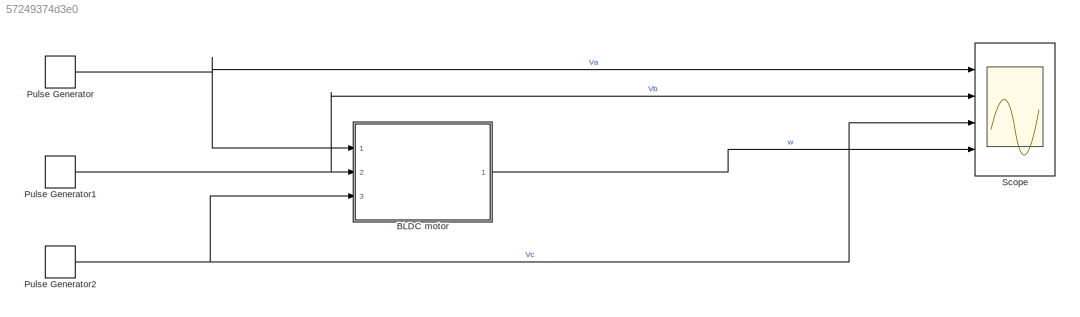
MODEL slx_57249374d3e0
KIND model
CONFIG AbsTol = auto
CONFIG EnableMultiTasking = off
CONFIG FixedStep = auto
CONFIG MaxStep = auto
CONFIG MinStep = auto
CONFIG RelTol = 1e-3
CONFIG SampleTimeConstraint = Unconstrained
CONFIG SolverName = VariableStepAuto
CONFIG StartTime = 0.0
CONFIG StopTime = 10.0
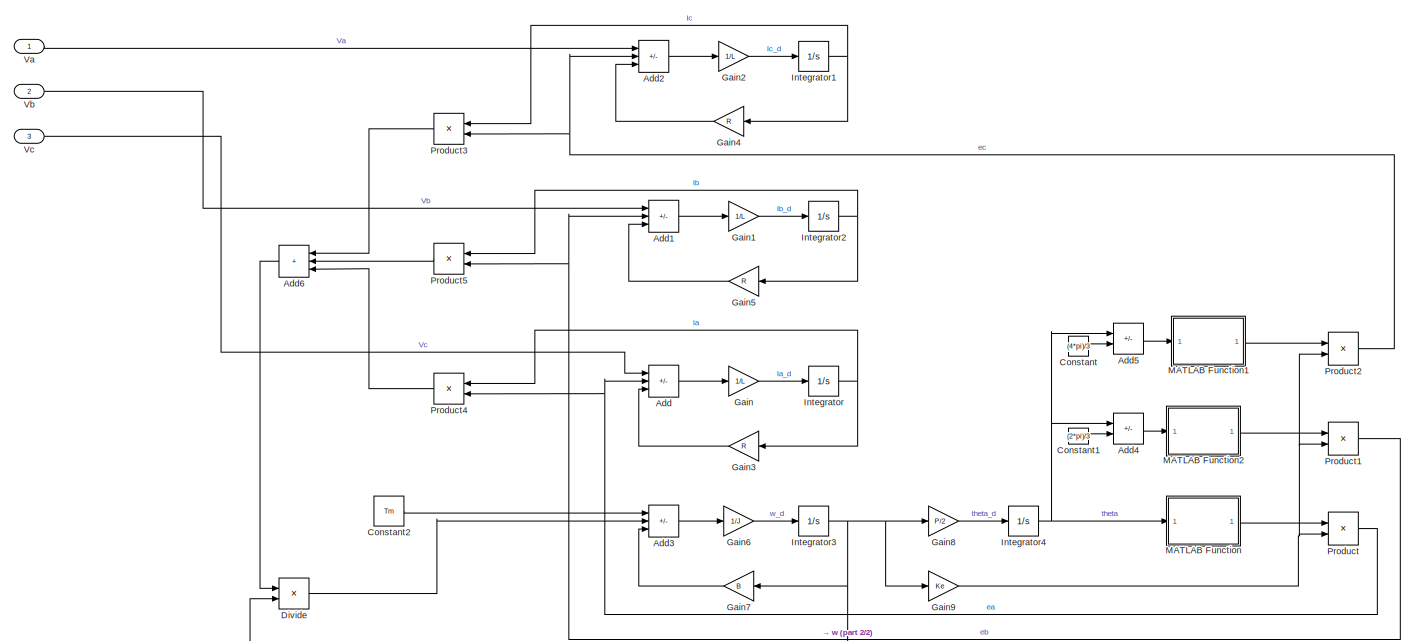
[diagram: BLDC motor - part 1/2, most of the canvas]
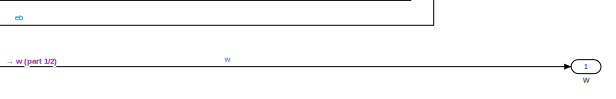
[diagram: BLDC motor - part 2/2, bottom right region]
BLOCK [SubSystem] BLDC motor
  Ports = [3, 1]
  RequestExecContextInheritance = off
BLOCK [Sum] BLDC motor/Add
  IconShape = rectangular
  Inputs = +--
  Ports = [3, 1]
BLOCK [Sum] BLDC motor/Add1
  IconShape = rectangular
  Inputs = +--
  Ports = [3, 1]
BLOCK [Sum] BLDC motor/Add2
  IconShape = rectangular
  Inputs = +--
  Ports = [3, 1]
BLOCK [Sum] BLDC motor/Add3
  IconShape = rectangular
  Inputs = -+-
  Ports = [3, 1]
BLOCK [Sum] BLDC motor/Add4
  IconShape = rectangular
  Inputs = +-
  Ports = [2, 1]
BLOCK [Sum] BLDC motor/Add5
  IconShape = rectangular
  Inputs = +-
  Ports = [2, 1]
BLOCK [Sum] BLDC motor/Add6
  IconShape = rectangular
  Inputs = +++
  NameLocation = top
  Ports = [3, 1]
BLOCK [Constant] BLDC motor/Constant
  Value = (4*pi)/3
BLOCK [Constant] BLDC motor/Constant1
  Value = (2*pi)/3
BLOCK [Constant] BLDC motor/Constant2
  Value = Tm
BLOCK [Product] BLDC motor/Divide
  Inputs = */
  Ports = [2, 1]
BLOCK [Gain] BLDC motor/Gain
  Gain = 1/L
BLOCK [Gain] BLDC motor/Gain1
  Gain = 1/L
BLOCK [Gain] BLDC motor/Gain2
  Gain = 1/L
BLOCK [Gain] BLDC motor/Gain3
  Gain = R
  NameLocation = top
BLOCK [Gain] BLDC motor/Gain4
  Gain = R
  NameLocation = top
BLOCK [Gain] BLDC motor/Gain5
  Gain = R
  NameLocation = top
BLOCK [Gain] BLDC motor/Gain6
  Gain = 1/J
BLOCK [Gain] BLDC motor/Gain7
  Gain = B
  NameLocation = top
BLOCK [Gain] BLDC motor/Gain8
  Gain = P/2
BLOCK [Gain] BLDC motor/Gain9
  Gain = Ke
BLOCK [Integrator] BLDC motor/Integrator
  Ports = [1, 1]
BLOCK [Integrator] BLDC motor/Integrator1
  Ports = [1, 1]
BLOCK [Integrator] BLDC motor/Integrator2
  Ports = [1, 1]
BLOCK [Integrator] BLDC motor/Integrator3
  InitialCondition = 1
  Ports = [1, 1]
BLOCK [Integrator] BLDC motor/Integrator4
  Ports = [1, 1]
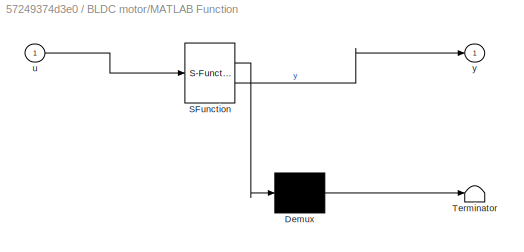
BLOCK [SubSystem] BLDC motor/MATLAB Function
  ErrorFcn = Stateflow.Translate.translate
  PermitHierarchicalResolution = ExplicitOnly
  Ports = [1, 1]
  RequestExecContextInheritance = off
  SFBlockType = MATLAB Function
  TreatAsAtomicUnit = on
BLOCK [Demux] BLDC motor/MATLAB Function/ Demux 
  Outputs = 1
  Ports = [1, 1]
BLOCK [S-Function] BLDC motor/MATLAB Function/ SFunction 
  EnableBusSupport = on
  FunctionName = sf_sfun
  PortCounts = [1 2]
  Ports = [1, 2]
  SFcnIsStateOwnerBlock = off
  SFunctionDeploymentMode = off
  Tag = Stateflow S-Function 2
BLOCK [Terminator] BLDC motor/MATLAB Function/ Terminator 
BLOCK [Inport] BLDC motor/MATLAB Function/u
BLOCK [Outport] BLDC motor/MATLAB Function/y
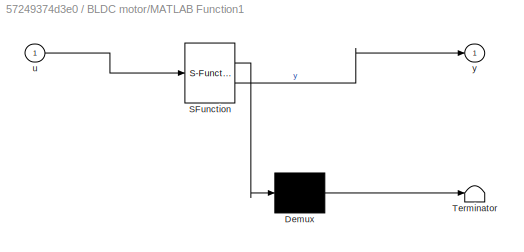
BLOCK [SubSystem] BLDC motor/MATLAB Function1
  ErrorFcn = Stateflow.Translate.translate
  PermitHierarchicalResolution = ExplicitOnly
  Ports = [1, 1]
  RequestExecContextInheritance = off
  SFBlockType = MATLAB Function
  TreatAsAtomicUnit = on
BLOCK [Demux] BLDC motor/MATLAB Function1/ Demux 
  Outputs = 1
  Ports = [1, 1]
BLOCK [S-Function] BLDC motor/MATLAB Function1/ SFunction 
  EnableBusSupport = on
  FunctionName = sf_sfun
  PortCounts = [1 2]
  Ports = [1, 2]
  SFcnIsStateOwnerBlock = off
  SFunctionDeploymentMode = off
  Tag = Stateflow S-Function 1
BLOCK [Terminator] BLDC motor/MATLAB Function1/ Terminator 
BLOCK [Inport] BLDC motor/MATLAB Function1/u
BLOCK [Outport] BLDC motor/MATLAB Function1/y
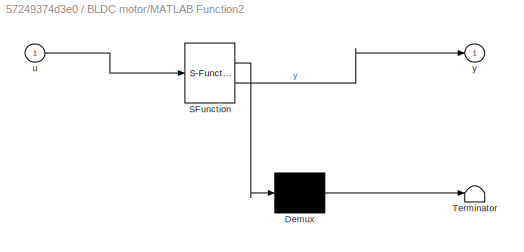
BLOCK [SubSystem] BLDC motor/MATLAB Function2
  ErrorFcn = Stateflow.Translate.translate
  PermitHierarchicalResolution = ExplicitOnly
  Ports = [1, 1]
  RequestExecContextInheritance = off
  SFBlockType = MATLAB Function
  TreatAsAtomicUnit = on
BLOCK [Demux] BLDC motor/MATLAB Function2/ Demux 
  Outputs = 1
  Ports = [1, 1]
BLOCK [S-Function] BLDC motor/MATLAB Function2/ SFunction 
  EnableBusSupport = on
  FunctionName = sf_sfun
  PortCounts = [1 2]
  Ports = [1, 2]
  SFcnIsStateOwnerBlock = off
  SFunctionDeploymentMode = off
  Tag = Stateflow S-Function 3
BLOCK [Terminator] BLDC motor/MATLAB Function2/ Terminator 
BLOCK [Inport] BLDC motor/MATLAB Function2/u
BLOCK [Outport] BLDC motor/MATLAB Function2/y
BLOCK [Product] BLDC motor/Product
  Ports = [2, 1]
BLOCK [Product] BLDC motor/Product1
  Ports = [2, 1]
BLOCK [Product] BLDC motor/Product2
  Ports = [2, 1]
BLOCK [Product] BLDC motor/Product3
  NameLocation = top
  Ports = [2, 1]
BLOCK [Product] BLDC motor/Product4
  NameLocation = top
  Ports = [2, 1]
BLOCK [Product] BLDC motor/Product5
  NameLocation = top
  Ports = [2, 1]
BLOCK [Inport] BLDC motor/Va
BLOCK [Inport] BLDC motor/Vb
  Port = 2
BLOCK [Inport] BLDC motor/Vc
  Port = 3
BLOCK [Outport] BLDC motor/w
BLOCK [DiscretePulseGenerator] Pulse Generator
  Amplitude = 30
  Period = 10
  Ports = [0, 1]
  PulseType = Time based
  PulseWidth = 30
BLOCK [DiscretePulseGenerator] Pulse Generator1
  Amplitude = 30
  Period = 10
  PhaseDelay = 2.8
  Ports = [0, 1]
  PulseType = Time based
  PulseWidth = 30
BLOCK [DiscretePulseGenerator] Pulse Generator2
  Amplitude = 30
  Period = 10
  PhaseDelay = 5.8
  Ports = [0, 1]
  PulseType = Time based
  PulseWidth = 30
BLOCK [Scope] Scope
  Floating = off
  NumInputPorts = 4
  Ports = [4]
  ScopeSpecificationString = Simulink.scopes.TimeScopeBlockCfg('CurrentConfiguration', extmgr.ConfigurationSet(extmgr.Configuration('Core','General UI',true),extmgr.Configuration('Core','Source UI',true),extmgr.Configuration('Sources','WiredSimulink',true),extmgr.Configuration('Visuals','Time Domain',true,'SerializedDisplays',{struct('MinYLimReal','-10','MaxYLimReal','10','YLabelReal','','MinYLimMag','0','MaxYLimMag','10','Le...<+3476ch>
LINE BLDC motor/Add1:1 -> BLDC motor/Gain1:1
LINE BLDC motor/Add2:1 -> BLDC motor/Gain2:1
LINE BLDC motor/Add3:1 -> BLDC motor/Gain6:1
LINE BLDC motor/Add4:1 -> BLDC motor/MATLAB Function2:1
LINE BLDC motor/Add5:1 -> BLDC motor/MATLAB Function1:1
LINE BLDC motor/Add6:1 -> BLDC motor/Divide:1
LINE BLDC motor/Add:1 -> BLDC motor/Gain:1
LINE BLDC motor/Constant1:1 -> BLDC motor/Add4:2
LINE BLDC motor/Constant2:1 -> BLDC motor/Add3:1
LINE BLDC motor/Constant:1 -> BLDC motor/Add5:2
LINE BLDC motor/Divide:1 -> BLDC motor/Add3:2
LINE BLDC motor/Gain1:1 -> BLDC motor/Integrator2:1
LINE BLDC motor/Gain2:1 -> BLDC motor/Integrator1:1
LINE BLDC motor/Gain3:1 -> BLDC motor/Add:3
LINE BLDC motor/Gain4:1 -> BLDC motor/Add2:3
LINE BLDC motor/Gain5:1 -> BLDC motor/Add1:3
LINE BLDC motor/Gain6:1 -> BLDC motor/Integrator3:1
LINE BLDC motor/Gain7:1 -> BLDC motor/Add3:3
LINE BLDC motor/Gain8:1 -> BLDC motor/Integrator4:1
NET BLDC motor/Gain9:1 -> BLDC motor/Product1:2, BLDC motor/Product2:2, BLDC motor/Product:2
LINE BLDC motor/Gain:1 -> BLDC motor/Integrator:1
NET BLDC motor/Integrator1:1 -> BLDC motor/Gain4:1, BLDC motor/Product3:1
NET BLDC motor/Integrator2:1 -> BLDC motor/Gain5:1, BLDC motor/Product5:1
NET BLDC motor/Integrator3:1 -> BLDC motor/Divide:2, BLDC motor/Gain7:1, BLDC motor/Gain8:1, BLDC motor/Gain9:1, BLDC motor/w:1
NET BLDC motor/Integrator4:1 -> BLDC motor/Add4:1, BLDC motor/Add5:1, BLDC motor/MATLAB Function:1
NET BLDC motor/Integrator:1 -> BLDC motor/Gain3:1, BLDC motor/Product4:1
LINE BLDC motor/MATLAB Function1:1 -> BLDC motor/Product2:1
LINE BLDC motor/MATLAB Function2:1 -> BLDC motor/Product1:1
LINE BLDC motor/MATLAB Function:1 -> BLDC motor/Product:1
NET BLDC motor/Product1:1 -> BLDC motor/Add1:2, BLDC motor/Product5:2
NET BLDC motor/Product2:1 -> BLDC motor/Add2:2, BLDC motor/Product3:2
LINE BLDC motor/Product3:1 -> BLDC motor/Add6:1
LINE BLDC motor/Product4:1 -> BLDC motor/Add6:3
LINE BLDC motor/Product5:1 -> BLDC motor/Add6:2
NET BLDC motor/Product:1 -> BLDC motor/Add:2, BLDC motor/Product4:2
LINE BLDC motor/Va:1 -> BLDC motor/Add2:1
LINE BLDC motor/Vb:1 -> BLDC motor/Add1:1
LINE BLDC motor/Vc:1 -> BLDC motor/Add:1
LINE BLDC motor:1 -> Scope:4
NET Pulse Generator1:1 -> BLDC motor:2, Scope:2
NET Pulse Generator2:1 -> BLDC motor:3, Scope:3
NET Pulse Generator:1 -> BLDC motor:1, Scope:1
note: NET lines group one-source signal fan-out (src -> all destinations, sorted); 1:1 wires keep LINE
CHART BLDC motor/MATLAB Function states=1 transitions=1
  STATE_LABEL 'eML_blk_kernel()'
  STATE_LABEL 'SCRIPT:\nfunction y = fcn(u)\n\nif (u>=0 && u<((2*pi)/3))\n    y = 1;\nelseif(u>=((2*pi)/3) && u<pi)\n    y = 1-(6/pi*(u-((2*pi)/3)));\nelseif(u>=pi && u<((5*pi)/3))\n    y = -1;\nelse\n    y = -1+(6/pi*(u-((5*pi)/3)));\nend\nend\n\n'  <repeated x3 — deduplicated; at blocks: MATLAB Function, MATLAB Function2, MATLAB Function1>
CHART BLDC motor/MATLAB Function2 states=1 transitions=1
  STATE_LABEL 'eML_blk_kernel()'
CHART BLDC motor/MATLAB Function1 states=1 transitions=1
  STATE_LABEL 'eML_blk_kernel()'
CHART  states=0 transitions=0
CHART  states=0 transitions=0
CHART  states=0 transitions=0
